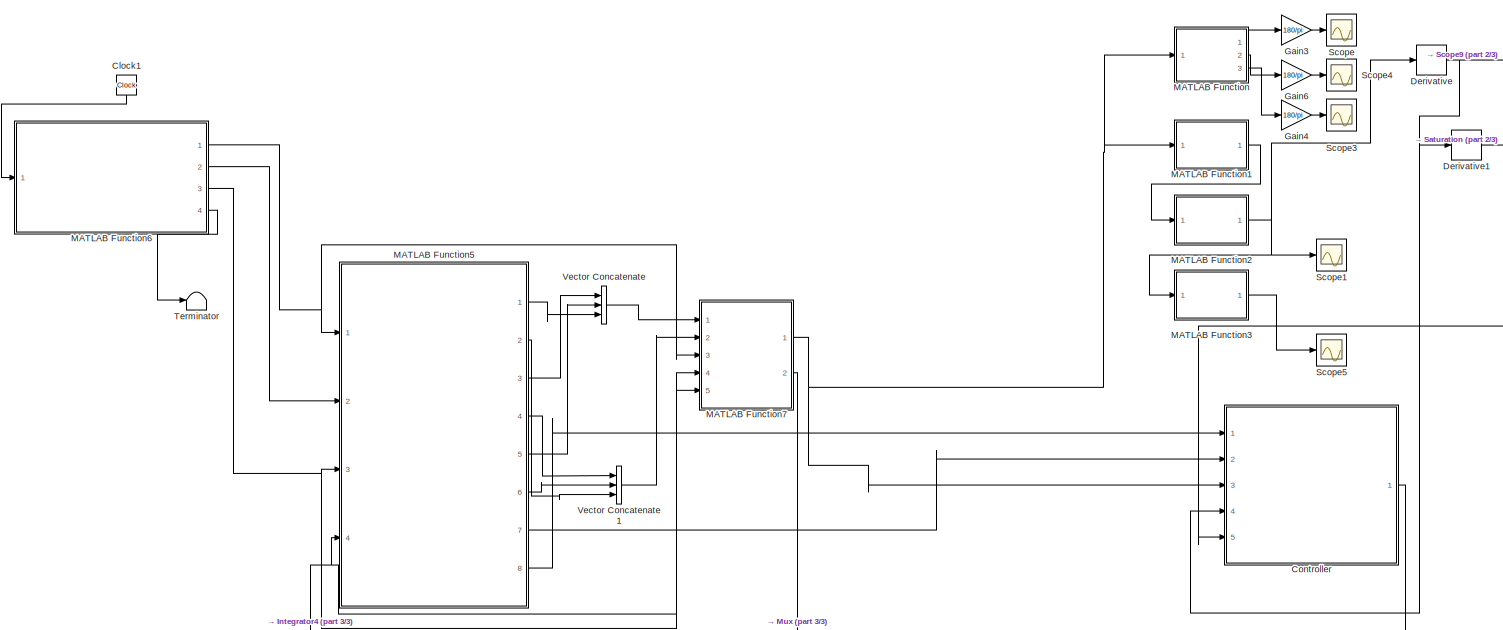
[diagram: root canvas - part 1/3, full width, top band]
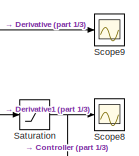
[diagram: root canvas - part 2/3, top right region]
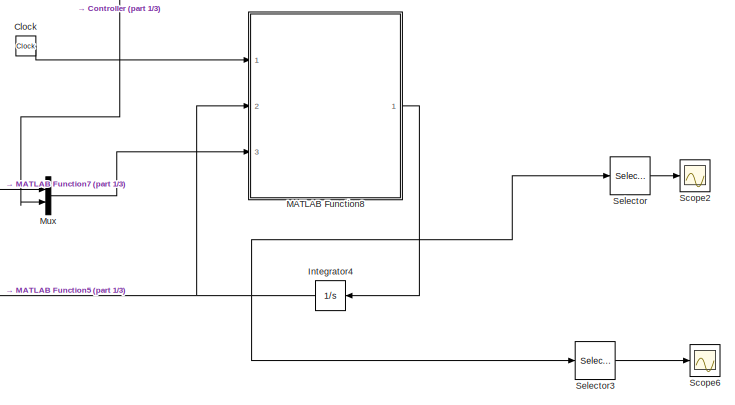
[diagram: root canvas - part 3/3, bottom right region]
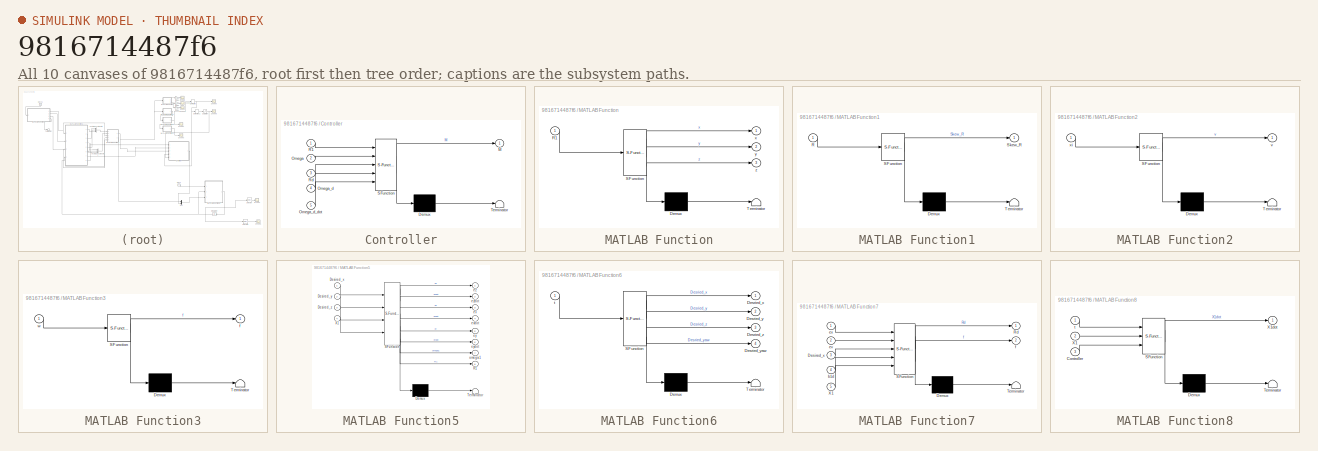
[diagram: thumbnail index - all 10 canvases of the model, root first then tree order]
MODEL slx_9816714487f6
KIND model
CONFIG AbsTol = auto
CONFIG EnableMultiTasking = off
CONFIG FixedStep = 1e-3
CONFIG MaxStep = auto
CONFIG MinStep = auto
CONFIG RelTol = 1e-3
CONFIG SampleTimeConstraint = Unconstrained
CONFIG Solver = ode4
CONFIG SolverName = ode4
CONFIG StartTime = 0.0
CONFIG StopTime = 10.0
BLOCK [Clock] Clock
BLOCK [Clock] Clock1
BLOCK [SubSystem] Controller
  ErrorFcn = Stateflow.Translate.translate
  PermitHierarchicalResolution = ExplicitOnly
  Ports = [5, 1]
  RequestExecContextInheritance = off
  SFBlockType = MATLAB Function
  TreatAsAtomicUnit = on
BLOCK [Demux] Controller/ Demux 
  Outputs = 1
  Ports = [1, 1]
BLOCK [S-Function] Controller/ SFunction 
  EnableBusSupport = on
  FunctionName = sf_sfun
  PortCounts = [5 2]
  Ports = [5, 2]
  SFcnIsStateOwnerBlock = off
  SFunctionDeploymentMode = off
  Tag = Stateflow S-Function 5
BLOCK [Terminator] Controller/ Terminator 
BLOCK [Outport] Controller/M
  IconDisplay = Port number
  VectorParamsAs1DForOutWhenUnconnected = off
BLOCK [Inport] Controller/Omega
  IconDisplay = Port number
  Port = 2
BLOCK [Inport] Controller/Omega_d
  IconDisplay = Port number
  Port = 4
BLOCK [Inport] Controller/Omega_d_dot
  IconDisplay = Port number
  Port = 5
BLOCK [Inport] Controller/R1
  IconDisplay = Port number
BLOCK [Inport] Controller/Rd
  IconDisplay = Port number
  Port = 3
BLOCK [Derivative] Derivative
BLOCK [Derivative] Derivative1
BLOCK [Gain] Gain3
  Gain = 180/pi
  OutDataTypeStr = Inherit: Inherit via internal rule
  ParamDataTypeStr = Inherit: Inherit via internal rule
  SaturateOnIntegerOverflow = off
BLOCK [Gain] Gain4
  Gain = 180/pi
  OutDataTypeStr = Inherit: Inherit via internal rule
  ParamDataTypeStr = Inherit: Inherit via internal rule
  SaturateOnIntegerOverflow = off
BLOCK [Gain] Gain6
  Gain = 180/pi
  OutDataTypeStr = Inherit: Inherit via internal rule
  ParamDataTypeStr = Inherit: Inherit via internal rule
  SaturateOnIntegerOverflow = off
BLOCK [Integrator] Integrator4
  InitialCondition = [0;0;0;0;0;0;reshape(eye(3),9,1);0;0;0]
  Ports = [1, 1]
BLOCK [SubSystem] MATLAB Function
  ErrorFcn = Stateflow.Translate.translate
  PermitHierarchicalResolution = ExplicitOnly
  Ports = [1, 3]
  RequestExecContextInheritance = off
  SFBlockType = MATLAB Function
  TreatAsAtomicUnit = on
BLOCK [Demux] MATLAB Function/ Demux 
  Outputs = 1
  Ports = [1, 1]
BLOCK [S-Function] MATLAB Function/ SFunction 
  EnableBusSupport = on
  FunctionName = sf_sfun
  PortCounts = [1 4]
  Ports = [1, 4]
  SFcnIsStateOwnerBlock = off
  SFunctionDeploymentMode = off
  Tag = Stateflow S-Function 2
BLOCK [Terminator] MATLAB Function/ Terminator 
BLOCK [Inport] MATLAB Function/R1
  IconDisplay = Port number
BLOCK [Outport] MATLAB Function/x
  IconDisplay = Port number
BLOCK [Outport] MATLAB Function/y
  IconDisplay = Port number
  Port = 2
  VectorParamsAs1DForOutWhenUnconnected = off
BLOCK [Outport] MATLAB Function/z
  IconDisplay = Port number
  Port = 3
BLOCK [SubSystem] MATLAB Function1
  ErrorFcn = Stateflow.Translate.translate
  PermitHierarchicalResolution = ExplicitOnly
  Ports = [1, 1]
  RequestExecContextInheritance = off
  SFBlockType = MATLAB Function
  TreatAsAtomicUnit = on
BLOCK [Demux] MATLAB Function1/ Demux 
  Outputs = 1
  Ports = [1, 1]
BLOCK [S-Function] MATLAB Function1/ SFunction 
  EnableBusSupport = on
  FunctionName = sf_sfun
  PortCounts = [1 2]
  Ports = [1, 2]
  SFcnIsStateOwnerBlock = off
  SFunctionDeploymentMode = off
  Tag = Stateflow S-Function 1
BLOCK [Terminator] MATLAB Function1/ Terminator 
BLOCK [Inport] MATLAB Function1/R
  IconDisplay = Port number
BLOCK [Outport] MATLAB Function1/Skew_R
  IconDisplay = Port number
  VectorParamsAs1DForOutWhenUnconnected = off
BLOCK [SubSystem] MATLAB Function2
  ErrorFcn = Stateflow.Translate.translate
  PermitHierarchicalResolution = ExplicitOnly
  Ports = [1, 1]
  RequestExecContextInheritance = off
  SFBlockType = MATLAB Function
  TreatAsAtomicUnit = on
BLOCK [Demux] MATLAB Function2/ Demux 
  Outputs = 1
  Ports = [1, 1]
BLOCK [S-Function] MATLAB Function2/ SFunction 
  EnableBusSupport = on
  FunctionName = sf_sfun
  PortCounts = [1 2]
  Ports = [1, 2]
  SFcnIsStateOwnerBlock = off
  SFunctionDeploymentMode = off
  Tag = Stateflow S-Function 3
BLOCK [Terminator] MATLAB Function2/ Terminator 
BLOCK [Outport] MATLAB Function2/v
  IconDisplay = Port number
  VectorParamsAs1DForOutWhenUnconnected = off
BLOCK [Inport] MATLAB Function2/xi
  IconDisplay = Port number
BLOCK [SubSystem] MATLAB Function3
  ErrorFcn = Stateflow.Translate.translate
  PermitHierarchicalResolution = ExplicitOnly
  Ports = [1, 1]
  RequestExecContextInheritance = off
  SFBlockType = MATLAB Function
  TreatAsAtomicUnit = on
BLOCK [Demux] MATLAB Function3/ Demux 
  Outputs = 1
  Ports = [1, 1]
BLOCK [S-Function] MATLAB Function3/ SFunction 
  EnableBusSupport = on
  FunctionName = sf_sfun
  PortCounts = [1 2]
  Ports = [1, 2]
  SFcnIsStateOwnerBlock = off
  SFunctionDeploymentMode = off
  Tag = Stateflow S-Function 4
BLOCK [Terminator] MATLAB Function3/ Terminator 
BLOCK [Outport] MATLAB Function3/f
  IconDisplay = Port number
  VectorParamsAs1DForOutWhenUnconnected = off
BLOCK [Inport] MATLAB Function3/w
  IconDisplay = Port number
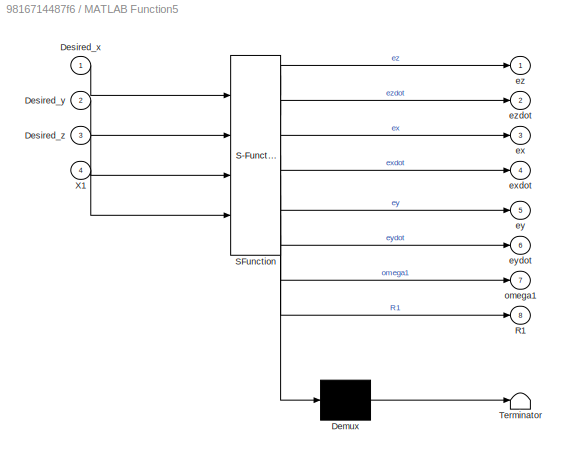
BLOCK [SubSystem] MATLAB Function5
  ErrorFcn = Stateflow.Translate.translate
  PermitHierarchicalResolution = ExplicitOnly
  Ports = [4, 8]
  RequestExecContextInheritance = off
  SFBlockType = MATLAB Function
  TreatAsAtomicUnit = on
BLOCK [Demux] MATLAB Function5/ Demux 
  Outputs = 1
  Ports = [1, 1]
BLOCK [S-Function] MATLAB Function5/ SFunction 
  EnableBusSupport = on
  FunctionName = sf_sfun
  PortCounts = [4 9]
  Ports = [4, 9]
  SFcnIsStateOwnerBlock = off
  SFunctionDeploymentMode = off
  Tag = Stateflow S-Function 8
BLOCK [Terminator] MATLAB Function5/ Terminator 
BLOCK [Inport] MATLAB Function5/Desired_x
  IconDisplay = Port number
BLOCK [Inport] MATLAB Function5/Desired_y
  IconDisplay = Port number
  Port = 2
BLOCK [Inport] MATLAB Function5/Desired_z
  IconDisplay = Port number
  Port = 3
BLOCK [Outport] MATLAB Function5/R1
  IconDisplay = Port number
  Port = 8
BLOCK [Inport] MATLAB Function5/X1
  IconDisplay = Port number
  Port = 4
BLOCK [Outport] MATLAB Function5/ex
  IconDisplay = Port number
  Port = 3
  VectorParamsAs1DForOutWhenUnconnected = off
BLOCK [Outport] MATLAB Function5/exdot
  IconDisplay = Port number
  Port = 4
  VectorParamsAs1DForOutWhenUnconnected = off
BLOCK [Outport] MATLAB Function5/ey
  IconDisplay = Port number
  Port = 5
  VectorParamsAs1DForOutWhenUnconnected = off
BLOCK [Outport] MATLAB Function5/eydot
  IconDisplay = Port number
  Port = 6
  VectorParamsAs1DForOutWhenUnconnected = off
BLOCK [Outport] MATLAB Function5/ez
  IconDisplay = Port number
  VectorParamsAs1DForOutWhenUnconnected = off
BLOCK [Outport] MATLAB Function5/ezdot
  IconDisplay = Port number
  Port = 2
  VectorParamsAs1DForOutWhenUnconnected = off
BLOCK [Outport] MATLAB Function5/omega1
  IconDisplay = Port number
  Port = 7
BLOCK [SubSystem] MATLAB Function6
  ErrorFcn = Stateflow.Translate.translate
  PermitHierarchicalResolution = ExplicitOnly
  Ports = [1, 4]
  RequestExecContextInheritance = off
  SFBlockType = MATLAB Function
  TreatAsAtomicUnit = on
BLOCK [Demux] MATLAB Function6/ Demux 
  Outputs = 1
  Ports = [1, 1]
BLOCK [S-Function] MATLAB Function6/ SFunction 
  EnableBusSupport = on
  FunctionName = sf_sfun
  PortCounts = [1 5]
  Ports = [1, 5]
  SFcnIsStateOwnerBlock = off
  SFunctionDeploymentMode = off
  Tag = Stateflow S-Function 9
BLOCK [Terminator] MATLAB Function6/ Terminator 
BLOCK [Outport] MATLAB Function6/Desried_x
  IconDisplay = Port number
  VectorParamsAs1DForOutWhenUnconnected = off
BLOCK [Outport] MATLAB Function6/Desried_y
  IconDisplay = Port number
  Port = 2
  VectorParamsAs1DForOutWhenUnconnected = off
BLOCK [Outport] MATLAB Function6/Desried_yaw
  IconDisplay = Port number
  Port = 4
  VectorParamsAs1DForOutWhenUnconnected = off
BLOCK [Outport] MATLAB Function6/Desried_z
  IconDisplay = Port number
  Port = 3
  VectorParamsAs1DForOutWhenUnconnected = off
BLOCK [Inport] MATLAB Function6/t
  IconDisplay = Port number
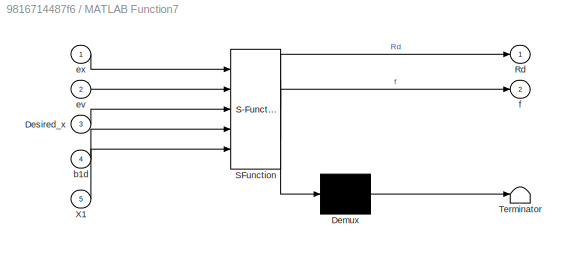
BLOCK [SubSystem] MATLAB Function7
  ErrorFcn = Stateflow.Translate.translate
  PermitHierarchicalResolution = ExplicitOnly
  Ports = [5, 2]
  RequestExecContextInheritance = off
  SFBlockType = MATLAB Function
  TreatAsAtomicUnit = on
BLOCK [Demux] MATLAB Function7/ Demux 
  Outputs = 1
  Ports = [1, 1]
BLOCK [S-Function] MATLAB Function7/ SFunction 
  EnableBusSupport = on
  FunctionName = sf_sfun
  PortCounts = [5 3]
  Ports = [5, 3]
  SFcnIsStateOwnerBlock = off
  SFunctionDeploymentMode = off
  Tag = Stateflow S-Function 10
BLOCK [Terminator] MATLAB Function7/ Terminator 
BLOCK [Inport] MATLAB Function7/Desired_x
  IconDisplay = Port number
  Port = 3
BLOCK [Outport] MATLAB Function7/Rd
  IconDisplay = Port number
BLOCK [Inport] MATLAB Function7/X1
  IconDisplay = Port number
  Port = 5
BLOCK [Inport] MATLAB Function7/b1d
  IconDisplay = Port number
  Port = 4
BLOCK [Inport] MATLAB Function7/ev
  IconDisplay = Port number
  Port = 2
BLOCK [Inport] MATLAB Function7/ex
  IconDisplay = Port number
BLOCK [Outport] MATLAB Function7/f
  IconDisplay = Port number
  Port = 2
BLOCK [SubSystem] MATLAB Function8
  ErrorFcn = Stateflow.Translate.translate
  PermitHierarchicalResolution = ExplicitOnly
  Ports = [3, 1]
  RequestExecContextInheritance = off
  SFBlockType = MATLAB Function
  TreatAsAtomicUnit = on
BLOCK [Demux] MATLAB Function8/ Demux 
  Outputs = 1
  Ports = [1, 1]
BLOCK [S-Function] MATLAB Function8/ SFunction 
  EnableBusSupport = on
  FunctionName = sf_sfun
  PortCounts = [3 2]
  Ports = [3, 2]
  SFcnIsStateOwnerBlock = off
  SFunctionDeploymentMode = off
  Tag = Stateflow S-Function 11
BLOCK [Terminator] MATLAB Function8/ Terminator 
BLOCK [Inport] MATLAB Function8/Controller
  IconDisplay = Port number
  Port = 3
BLOCK [Inport] MATLAB Function8/X1
  IconDisplay = Port number
  Port = 2
BLOCK [Outport] MATLAB Function8/X1dot
  IconDisplay = Port number
  VectorParamsAs1DForOutWhenUnconnected = off
BLOCK [Inport] MATLAB Function8/t
  IconDisplay = Port number
BLOCK [Mux] Mux
  DisplayOption = bar
  Inputs = 2
  Ports = [2, 1]
BLOCK [Saturate] Saturation
  InputPortMap = u0
  LowerLimit = -20
  Ports = [1, 1]
  UpperLimit = 20
BLOCK [Scope] Scope
  Floating = off
  NumInputPorts = 1
  Ports = [1]
  ScopeSpecificationString = Simulink.scopes.TimeScopeBlockCfg('CurrentConfiguration', extmgr.ConfigurationSet(extmgr.Configuration('Core','General UI',true),extmgr.Configuration('Core','Source UI',true),extmgr.Configuration('Sources','WiredSimulink',true),extmgr.Configuration('Visuals','Time Domain',true,'SerializedDisplays',{struct('MinYLimReal','-96.84148','MaxYLimReal','88.68212','YLabelReal','','MinYLimMag','0.00000','Ma...<+1385ch>
BLOCK [Scope] Scope1
  Floating = off
  NumInputPorts = 1
  Ports = [1]
  ScopeSpecificationString = Simulink.scopes.TimeScopeBlockCfg('CurrentConfiguration', extmgr.ConfigurationSet(extmgr.Configuration('Core','General UI',true),extmgr.Configuration('Core','Source UI',true),extmgr.Configuration('Sources','WiredSimulink',true,'DataLoggingVariableName','ScopeData1'),extmgr.Configuration('Visuals','Time Domain',true,'SerializedDisplays',{struct('MinYLimReal','-0.67661','MaxYLimReal','0.61571','YLab...<+1449ch>
BLOCK [Scope] Scope2
  Floating = off
  NumInputPorts = 1
  Ports = [1]
  ScopeSpecificationString = Simulink.scopes.TimeScopeBlockCfg('CurrentConfiguration', extmgr.ConfigurationSet(extmgr.Configuration('Core','General UI',true),extmgr.Configuration('Core','Source UI',true),extmgr.Configuration('Sources','WiredSimulink',true,'DataLoggingVariableName','ScopeData1'),extmgr.Configuration('Visuals','Time Domain',true,'SerializedDisplays',{struct('MinYLimReal','-14078389616025243908929849655296.00000...<+1703ch>
BLOCK [Scope] Scope3
  Floating = off
  NumInputPorts = 1
  Ports = [1]
  ScopeSpecificationString = Simulink.scopes.TimeScopeBlockCfg('CurrentConfiguration', extmgr.ConfigurationSet(extmgr.Configuration('Core','General UI',true),extmgr.Configuration('Core','Source UI',true),extmgr.Configuration('Sources','WiredSimulink',true,'DataLoggingVariableName','ScopeData3'),extmgr.Configuration('Visuals','Time Domain',true,'SerializedDisplays',{struct('MinYLimReal','-1.00000','MaxYLimReal','1.00000','YLab...<+1394ch>
BLOCK [Scope] Scope4
  Floating = off
  NumInputPorts = 1
  Ports = [1]
  ScopeSpecificationString = Simulink.scopes.TimeScopeBlockCfg('CurrentConfiguration', extmgr.ConfigurationSet(extmgr.Configuration('Core','General UI',true),extmgr.Configuration('Core','Source UI',true),extmgr.Configuration('Sources','WiredSimulink',true,'DataLoggingVariableName','ScopeData4'),extmgr.Configuration('Visuals','Time Domain',true,'SerializedDisplays',{struct('MinYLimReal','-1.00000','MaxYLimReal','1.00000','YLab...<+1393ch>
BLOCK [Scope] Scope5
  Floating = off
  NumInputPorts = 1
  Ports = [1]
  ScopeSpecificationString = Simulink.scopes.TimeScopeBlockCfg('CurrentConfiguration', extmgr.ConfigurationSet(extmgr.Configuration('Core','General UI',true),extmgr.Configuration('Core','Source UI',true),extmgr.Configuration('Sources','WiredSimulink',true,'DataLoggingVariableName','ScopeData1'),extmgr.Configuration('Visuals','Time Domain',true,'SerializedDisplays',{struct('MinYLimReal','-1.52725','MaxYLimReal','1.52725','YLab...<+1446ch>
BLOCK [Scope] Scope6
  Floating = off
  NumInputPorts = 1
  Ports = [1]
  ScopeSpecificationString = Simulink.scopes.TimeScopeBlockCfg('CurrentConfiguration', extmgr.ConfigurationSet(extmgr.Configuration('Core','General UI',true),extmgr.Configuration('Core','Source UI',true),extmgr.Configuration('Sources','WiredSimulink',true,'DataLoggingVariableName','ScopeData2'),extmgr.Configuration('Visuals','Time Domain',true,'SerializedDisplays',{struct('MinYLimReal','-67798024230148153344.00000','MaxYLimRe...<+1571ch>
BLOCK [Scope] Scope8
  Floating = off
  NumInputPorts = 1
  Ports = [1]
  ScopeSpecificationString = Simulink.scopes.TimeScopeBlockCfg('CurrentConfiguration', extmgr.ConfigurationSet(extmgr.Configuration('Core','General UI',true),extmgr.Configuration('Core','Source UI',true),extmgr.Configuration('Sources','WiredSimulink',true,'DataLoggingVariableName','ScopeData4'),extmgr.Configuration('Visuals','Time Domain',true,'SerializedDisplays',{struct('MinYLimReal','-0.47533','MaxYLimReal','0.88904','YLab...<+1476ch>
BLOCK [Scope] Scope9
  Floating = off
  NumInputPorts = 1
  Ports = [1]
  ScopeSpecificationString = Simulink.scopes.TimeScopeBlockCfg('CurrentConfiguration', extmgr.ConfigurationSet(extmgr.Configuration('Core','General UI',true),extmgr.Configuration('Core','Source UI',true),extmgr.Configuration('Sources','WiredSimulink',true,'DataLoggingVariableName','ScopeData5'),extmgr.Configuration('Visuals','Time Domain',true,'SerializedDisplays',{struct('MinYLimReal','-2.36525','MaxYLimReal','4.28041','YLab...<+1453ch>
BLOCK [Selector] Selector
  IndexOptions = Index vector (dialog)
  Indices = [1:2]
  InputPortWidth = 18
  OutputSizes = 1
  Ports = [1, 1]
BLOCK [Selector] Selector3
  IndexOptions = Index vector (dialog)
  Indices = [3]
  InputPortWidth = 18
  OutputSizes = 1
  Ports = [1, 1]
BLOCK [Terminator] Terminator
BLOCK [Concatenate] Vector Concatenate
  NumInputs = 3
  Ports = [3, 1]
BLOCK [Concatenate] Vector Concatenate1
  NumInputs = 3
  Ports = [3, 1]
LINE Clock1:1 -> MATLAB Function6:1
LINE Clock:1 -> MATLAB Function8:1
LINE Controller:1 -> Mux:2
LINE Derivative1:1 -> Saturation:1
NET Derivative:1 -> Controller:4, Derivative1:1, Scope9:1
LINE Gain3:1 -> Scope:1
LINE Gain4:1 -> Scope3:1
LINE Gain6:1 -> Scope4:1
NET Integrator4:1 -> MATLAB Function5:4, MATLAB Function7:5, MATLAB Function8:2, Selector3:1, Selector:1
LINE MATLAB Function1:1 -> MATLAB Function2:1
NET MATLAB Function2:1 -> Derivative:1, MATLAB Function3:1, Scope1:1
LINE MATLAB Function3:1 -> Scope5:1
LINE MATLAB Function5:1 -> Vector Concatenate:3
LINE MATLAB Function5:2 -> Vector Concatenate1:3
LINE MATLAB Function5:3 -> Vector Concatenate:1
LINE MATLAB Function5:4 -> Vector Concatenate1:1
LINE MATLAB Function5:5 -> Vector Concatenate:2
LINE MATLAB Function5:6 -> Vector Concatenate1:2
LINE MATLAB Function5:7 -> Controller:2
LINE MATLAB Function5:8 -> Controller:1
NET MATLAB Function6:1 -> MATLAB Function5:1, MATLAB Function7:3
LINE MATLAB Function6:2 -> MATLAB Function5:2
NET MATLAB Function6:3 -> MATLAB Function5:3, MATLAB Function7:4
LINE MATLAB Function6:4 -> Terminator:1
NET MATLAB Function7:1 -> Controller:3, MATLAB Function1:1, MATLAB Function:1
LINE MATLAB Function7:2 -> Mux:1
LINE MATLAB Function8:1 -> Integrator4:1
LINE MATLAB Function:1 -> Gain3:1
LINE MATLAB Function:2 -> Gain6:1
LINE MATLAB Function:3 -> Gain4:1
LINE Mux:1 -> MATLAB Function8:3
NET Saturation:1 -> Controller:5, Scope8:1
LINE Selector3:1 -> Scope6:1
LINE Selector:1 -> Scope2:1
LINE Vector Concatenate1:1 -> MATLAB Function7:2
LINE Vector Concatenate:1 -> MATLAB Function7:1
note: NET lines group one-source signal fan-out (src -> all destinations, sorted); 1:1 wires keep LINE
CHART MATLAB Function1 states=1 transitions=1
  STATE_LABEL 'eML_blk_kernel()'
  STATE_LABEL "SCRIPT:\nfunction Skew_R = mylogm(R)\n\nRp = reshape(R,3,3);\n    angle = acos( (trace(Rp) - 1)/2 )\n    \n    if (abs(angle) == 0 )\n    \n    mylog = zeros(3,3);\n    \n    else\n        mylog = (angle/(2*sin(angle)))*( Rp - Rp' );\n        \n    end\n    \nSkew_R = mylog;\n"
CHART MATLAB Function states=1 transitions=1
  STATE_LABEL 'eML_blk_kernel()'
  STATE_LABEL 'SCRIPT:\nfunction [x,y,z] = decompose_rotation_sim(R1)\n\nR = reshape(R1,3,3)\n\tx = atan2(R(3,2), R(3,3));\n\ty = atan2(-R(3,1), sqrt(R(3,2)*R(3,2) + R(3,3)*R(3,3)));\n\tz = atan2(R(2,1), R(1,1));\nend\n\n\n\n%y = u;\n'
CHART MATLAB Function2 states=1 transitions=1
  STATE_LABEL 'eML_blk_kernel()'
  STATE_LABEL "SCRIPT:\n%% This function takes a 3 by 3 skew symmetric matrix and converts it into a vector.\nfunction v = so3_hatinv(xi)\n[row,col] = size(xi);\n\n% if (row~=3 && col~=3)\n%     display('dimension error! so3_hatinv only takes skew symmetric 3 by 3 matrices');\n%     return;\n% end\n% \n% if (abs(xi(1,1))> (0.00001)  && abs(xi(2,2))> (0.00001) && abs (xi(3,3))> (0.00001))\n%     display('Martix in not skew!...<+96ch>"
CHART MATLAB Function3 states=1 transitions=1
  STATE_LABEL 'eML_blk_kernel()'
  STATE_LABEL "SCRIPT:\nfunction f = so3_hat(w)\n\n[row,col] = size(w);\n\n% if (row~=3 && col~=1)\n%     display('dimension error! so3_hat only takes col vectors consisting of 3 elements');\n%     return;\n% end\n\nf=[0, -w(3), w(2);\n   w(3), 0, -w(1);\n   -w(2), w(1), 0];\nend\n"
CHART Controller states=1 transitions=1
  STATE_LABEL 'eML_blk_kernel()'
  STATE_LABEL "SCRIPT:\nfunction M  = attitudeControllerSO3(R1,Omega,Rd,Omega_d,Omega_d_dot)\n\nJx = 0.01;\nJy = 0.0082;\nJz = 0.0148;\n\n\nJ = diag([Jx,Jy,Jz]);\n\nR = reshape(R1,3,3);\nR_d = reshape(Rd,3,3);\n\n%%%%%%%%%%%%%%%%%%%%%%%%% New terms %%%%%%%%%%%%%%%%%%%%%%%%%%%%%%%%%%\n    xi1 = mylogm(R'*R_d);\n    V = so3_hatinv ( so3_hat(Omega) - (R'*R_d)*so3_hat(Omega_d)*(R_d'*R) ); \n    xi2 =  -so3_hat(V);\n    %xi2_check = ...<+1181ch>"
CHART MATLAB Function5 states=1 transitions=1
  STATE_LABEL 'eML_blk_kernel()'
  STATE_LABEL 'SCRIPT:\nfunction [ez, ezdot,ex,exdot,ey,eydot,omega1,R1] = Errors(Desired_x, Desired_y, Desired_z,X1)\n%% Quadrotor\nX1dot=X1;\nrq=X1(1:3);\nvq = X1(1+3:3+3);\nR1  = X1(1+6:9+6);\nomega1 = X1(9+6+1:9+6+3);\n\nxd = Desired_x(1);\nxddot = Desired_x(2);\nxd2dot = Desired_x(3);\nxd3dot = Desired_x(4);\nxd4dot = Desired_x(5);\n\nyd = Desired_y(1);\nyddot = Desired_y(2);\nyd2dot = Desired_y(3);\nyd3dot = Desired_y(4);\ny...<+506ch>'
CHART MATLAB Function6 states=1 transitions=1
  STATE_LABEL 'eML_blk_kernel()'
  STATE_LABEL 'SCRIPT:\nfunction [Desried_x, Desried_y,Desried_z,Desried_yaw] = Desired_pose(t)\n%% Quadrotor\nDesried_x = [1;0;0;0;0;];\n\nDesried_y = [1;0;0;0;0;];\n\nDesried_z = [1;0;0;];\n\nDesried_yaw = [0.2;0;0];\nend\n\n\n\n\n'
CHART MATLAB Function7 states=1 transitions=1
  STATE_LABEL 'eML_blk_kernel()'
  STATE_LABEL "SCRIPT:\nfunction [Rd,f] = fcn(ex,ev,Desired_x,b1d,X1)\nkx = 16;\nkv = 5.6;\nm = 1.14;\ng = 10;\n\nR1  = X1(1+6:9+6);\nR = reshape(R1,3,3);\ne3 = [0;0;1];\nxd2dot = Desired_x(3);\n\nb3d = (-kx*ex - kv*ev - m*g*e3 +m*xd2dot)/norm(-kx*ex - kv*ev - m*g*e3 +m*xd2dot);\n\n\nb2d = cross(b3d,b1d)/norm(cross(b3d,b1d));\n\nRd = [cross(b2d,b3d); b2d; b3d];\n\nf = -(-kx*ex - kv*ev - m*g*e3 -m*g*e3+m*xd2dot)'*R*e3;\n"
CHART MATLAB Function8 states=1 transitions=1
  STATE_LABEL 'eML_blk_kernel()'
  STATE_LABEL 'SCRIPT:\nfunction X1dot   = Quadrotor_dynamics(t,X1,Controller)\n%% Quadrotor\nX1dot=X1;\nrq=X1(1:3);\nvq = X1(1+3:3+3);\nR1  = X1(1+6:9+6);\nomega1 = X1(9+6+1:9+6+3);\n\nm = 1.14;\ng=9.81;\nJx = 0.01;\nJy = 0.0082;\nJz = 0.0148;\n\n\n omega_i = omega1;\n    \n    s_omega = [0 -omega_i(3) omega_i(2);\n    omega_i(3) 0 -omega_i(1);\n    -omega_i(2) omega_i(1) 0];\n\nf = Controller (1);\n\nX1dot(1:3) = vq;\nX1dot(4:6) = -m*...<+196ch>'
